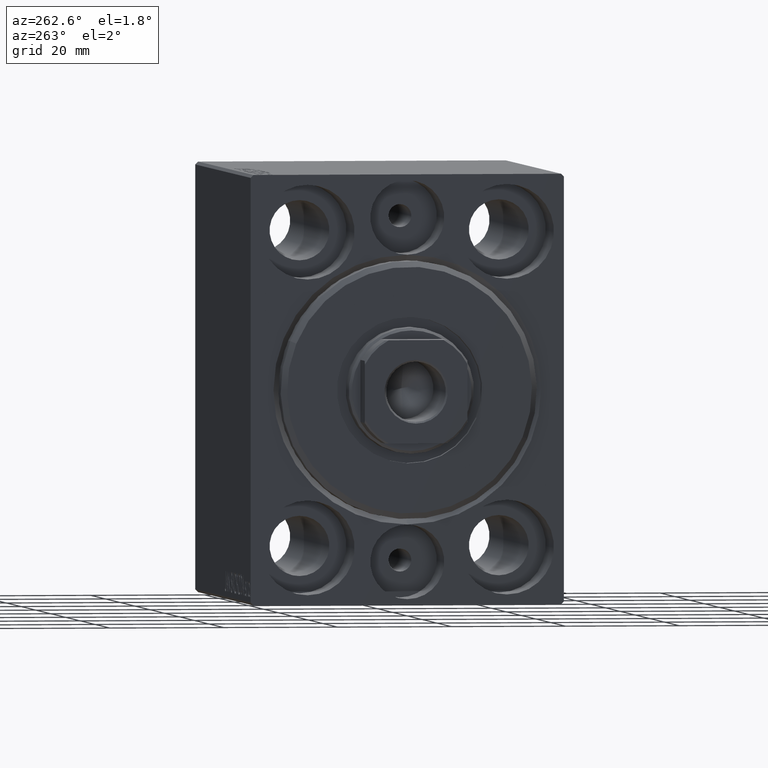
[diagram: clean part render]
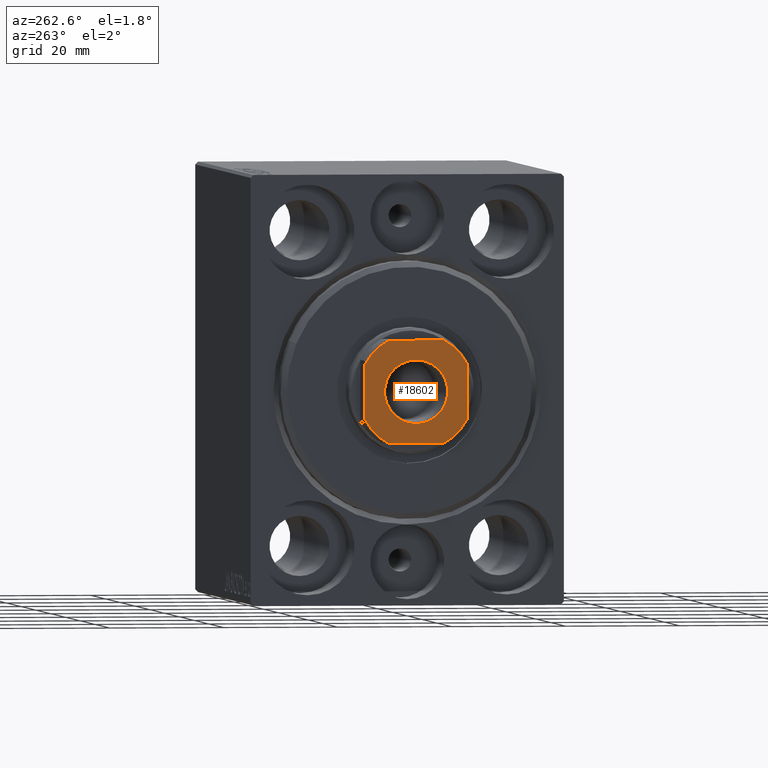
[diagram: same view with one face highlighted and labeled with its STEP entity id]
A machine part, auxiliary view. The second image highlights one B-rep face of the part: STEP entity #18602.
In plain terms, the highlighted planar face has unit normal (-1, 0, 0).
Its self-contained STEP definition (entity closure, byte-faithful):
#807 = LINE ( 'NONE', #41698, #2373 ) ;
#1028 = CIRCLE ( 'NONE', #33521, 10.19999999999999929 ) ;
#2373 = VECTOR ( 'NONE', #31942, 1000.000000000000000 ) ;
#3287 = CARTESIAN_POINT ( 'NONE',  ( 0.000000000000000000, 0.000000000000000000, 77.00000000000001421 ) ) ;
#4391 = VERTEX_POINT ( 'NONE', #40075 ) ;
#5228 = CARTESIAN_POINT ( 'NONE',  ( 8.999999999999998224, 8.999999999999998224, 77.00000000000001421 ) ) ;
#5481 = EDGE_CURVE ( 'NONE', #17757, #33230, #807, .T. ) ;
#5817 = CARTESIAN_POINT ( 'NONE',  ( 8.999999999999998224, 4.800000000000010481, 77.00000000000001421 ) ) ;
#5876 = DIRECTION ( 'NONE',  ( 1.000000000000000000, 0.000000000000000000, 0.000000000000000000 ) ) ;
#6104 = DIRECTION ( 'NONE',  ( 0.000000000000000000, -0.000000000000000000, -1.000000000000000000 ) ) ;
#6284 = CARTESIAN_POINT ( 'NONE',  ( 0.000000000000000000, 0.000000000000000000, 77.00000000000001421 ) ) ;
#6552 = ORIENTED_EDGE ( 'NONE', *, *, #33234, .T. ) ;
#6734 = VECTOR ( 'NONE', #15640, 1000.000000000000000 ) ;
#6881 = VERTEX_POINT ( 'NONE', #29156 ) ;
#7166 = CARTESIAN_POINT ( 'NONE',  ( 9.000000000000001776, -4.800000000000007816, 77.00000000000001421 ) ) ;
#7658 = DIRECTION ( 'NONE',  ( 0.000000000000000000, -0.000000000000000000, -1.000000000000000000 ) ) ;
#7698 = CARTESIAN_POINT ( 'NONE',  ( -4.799999999999995381, -9.000000000000001776, 77.00000000000001421 ) ) ;
#8181 = EDGE_CURVE ( 'NONE', #24099, #33221, #28881, .T. ) ;
#9314 = DIRECTION ( 'NONE',  ( 1.000000000000000000, 0.000000000000000000, 0.000000000000000000 ) ) ;
#9473 = VECTOR ( 'NONE', #9707, 1000.000000000000000 ) ;
#9476 = FACE_OUTER_BOUND ( 'NONE', #41335, .T. ) ;
#9707 = DIRECTION ( 'NONE',  ( -1.000000000000000000, -0.000000000000000000, -0.000000000000000000 ) ) ;
#10754 = ORIENTED_EDGE ( 'NONE', *, *, #36886, .T. ) ;
#10992 = AXIS2_PLACEMENT_3D ( 'NONE', #39694, #6104, #5876 ) ;
#11536 = ORIENTED_EDGE ( 'NONE', *, *, #8181, .T. ) ;
#12021 = DIRECTION ( 'NONE',  ( -0.000000000000000000, 0.000000000000000000, 1.000000000000000000 ) ) ;
#12302 = EDGE_CURVE ( 'NONE', #6881, #32501, #39988, .T. ) ;
#13032 = ORIENTED_EDGE ( 'NONE', *, *, #35333, .T. ) ;
#13462 = CARTESIAN_POINT ( 'NONE',  ( -8.999999999999998224, -4.799999999999999822, 77.00000000000001421 ) ) ;
#14715 = DIRECTION ( 'NONE',  ( 1.000000000000000000, 0.000000000000000000, 0.000000000000000000 ) ) ;
#15640 = DIRECTION ( 'NONE',  ( 1.927470528863119049E-16, -1.000000000000000000, 0.000000000000000000 ) ) ;
#15659 = ORIENTED_EDGE ( 'NONE', *, *, #5481, .T. ) ;
#16150 = CARTESIAN_POINT ( 'NONE',  ( -4.799999999999990941, 8.999999999999998224, 77.00000000000001421 ) ) ;
#16344 = CARTESIAN_POINT ( 'NONE',  ( -9.000000000000001776, 8.999999999999998224, 77.00000000000001421 ) ) ;
#16560 = CARTESIAN_POINT ( 'NONE',  ( 4.800000000000006928, -9.000000000000001776, 77.00000000000001421 ) ) ;
#16894 = DIRECTION ( 'NONE',  ( -0.000000000000000000, 0.000000000000000000, 1.000000000000000000 ) ) ;
#17137 = CARTESIAN_POINT ( 'NONE',  ( 5.550000000000013145, 0.000000000000000000, 77.00000000000001421 ) ) ;
#17757 = VERTEX_POINT ( 'NONE', #7698 ) ;
#18602 = ADVANCED_FACE ( 'NONE', ( #26493, #9476 ), #20308, .T. ) ;
#19450 = CIRCLE ( 'NONE', #10992, 5.550000000000013145 ) ;
#20302 = VERTEX_POINT ( 'NONE', #16150 ) ;
#20308 = PLANE ( 'NONE',  #30264 ) ;
#20511 = VECTOR ( 'NONE', #36154, 1000.000000000000000 ) ;
#22288 = CIRCLE ( 'NONE', #36429, 10.20000000000000462 ) ;
#23010 = ORIENTED_EDGE ( 'NONE', *, *, #25731, .T. ) ;
#23410 = DIRECTION ( 'NONE',  ( 1.000000000000000000, 0.000000000000000000, 0.000000000000000000 ) ) ;
#23733 = EDGE_LOOP ( 'NONE', ( #38359, #36829 ) ) ;
#23839 = DIRECTION ( 'NONE',  ( 1.000000000000000000, 0.000000000000000000, 0.000000000000000000 ) ) ;
#24099 = VERTEX_POINT ( 'NONE', #31596 ) ;
#25731 = EDGE_CURVE ( 'NONE', #27667, #4391, #29608, .T. ) ;
#26083 = AXIS2_PLACEMENT_3D ( 'NONE', #35629, #39601, #9314 ) ;
#26200 = LINE ( 'NONE', #5228, #20511 ) ;
#26493 = FACE_BOUND ( 'NONE', #23733, .T. ) ;
#27106 = DIRECTION ( 'NONE',  ( 1.000000000000000000, 0.000000000000000000, 0.000000000000000000 ) ) ;
#27356 = DIRECTION ( 'NONE',  ( -0.000000000000000000, 0.000000000000000000, 1.000000000000000000 ) ) ;
#27667 = VERTEX_POINT ( 'NONE', #5817 ) ;
#27757 = ORIENTED_EDGE ( 'NONE', *, *, #43061, .T. ) ;
#28322 = EDGE_CURVE ( 'NONE', #33511, #27667, #26200, .T. ) ;
#28663 = AXIS2_PLACEMENT_3D ( 'NONE', #37945, #7658, #27106 ) ;
#28881 = LINE ( 'NONE', #42388, #6734 ) ;
#29153 = ORIENTED_EDGE ( 'NONE', *, *, #28322, .T. ) ;
#29156 = CARTESIAN_POINT ( 'NONE',  ( -5.550000000000013145, 6.796789735267826558E-16, 77.00000000000001421 ) ) ;
#29608 = CIRCLE ( 'NONE', #26083, 10.20000000000000462 ) ;
#30264 = AXIS2_PLACEMENT_3D ( 'NONE', #37109, #39545, #23410 ) ;
#31596 = CARTESIAN_POINT ( 'NONE',  ( -9.000000000000001776, 4.799999999999986500, 77.00000000000001421 ) ) ;
#31942 = DIRECTION ( 'NONE',  ( 1.000000000000000000, 0.000000000000000000, 0.000000000000000000 ) ) ;
#32501 = VERTEX_POINT ( 'NONE', #17137 ) ;
#32808 = AXIS2_PLACEMENT_3D ( 'NONE', #6284, #16894, #43194 ) ;
#33135 = LINE ( 'NONE', #16344, #9473 ) ;
#33221 = VERTEX_POINT ( 'NONE', #13462 ) ;
#33230 = VERTEX_POINT ( 'NONE', #16560 ) ;
#33234 = EDGE_CURVE ( 'NONE', #4391, #20302, #33135, .T. ) ;
#33511 = VERTEX_POINT ( 'NONE', #7166 ) ;
#33521 = AXIS2_PLACEMENT_3D ( 'NONE', #3287, #27356, #23839 ) ;
#35333 = EDGE_CURVE ( 'NONE', #33221, #17757, #1028, .T. ) ;
#35465 = CARTESIAN_POINT ( 'NONE',  ( 0.000000000000000000, 0.000000000000000000, 77.00000000000001421 ) ) ;
#35629 = CARTESIAN_POINT ( 'NONE',  ( 0.000000000000000000, 0.000000000000000000, 77.00000000000001421 ) ) ;
#36154 = DIRECTION ( 'NONE',  ( -1.927470528863119049E-16, 1.000000000000000000, -0.000000000000000000 ) ) ;
#36429 = AXIS2_PLACEMENT_3D ( 'NONE', #35465, #12021, #14715 ) ;
#36829 = ORIENTED_EDGE ( 'NONE', *, *, #12302, .T. ) ;
#36886 = EDGE_CURVE ( 'NONE', #20302, #24099, #43441, .T. ) ;
#37109 = CARTESIAN_POINT ( 'NONE',  ( 0.000000000000000000, 0.000000000000000000, 77.00000000000001421 ) ) ;
#37945 = CARTESIAN_POINT ( 'NONE',  ( 0.000000000000000000, 0.000000000000000000, 77.00000000000001421 ) ) ;
#38359 = ORIENTED_EDGE ( 'NONE', *, *, #42118, .T. ) ;
#39545 = DIRECTION ( 'NONE',  ( -0.000000000000000000, 0.000000000000000000, 1.000000000000000000 ) ) ;
#39601 = DIRECTION ( 'NONE',  ( -0.000000000000000000, 0.000000000000000000, 1.000000000000000000 ) ) ;
#39694 = CARTESIAN_POINT ( 'NONE',  ( 0.000000000000000000, 0.000000000000000000, 77.00000000000001421 ) ) ;
#39988 = CIRCLE ( 'NONE', #28663, 5.550000000000013145 ) ;
#40075 = CARTESIAN_POINT ( 'NONE',  ( 4.800000000000012257, 8.999999999999998224, 77.00000000000001421 ) ) ;
#41335 = EDGE_LOOP ( 'NONE', ( #29153, #23010, #6552, #10754, #11536, #13032, #15659, #27757 ) ) ;
#41698 = CARTESIAN_POINT ( 'NONE',  ( -8.999999999999998224, -9.000000000000001776, 77.00000000000001421 ) ) ;
#42118 = EDGE_CURVE ( 'NONE', #32501, #6881, #19450, .T. ) ;
#42388 = CARTESIAN_POINT ( 'NONE',  ( -9.000000000000001776, 8.999999999999998224, 77.00000000000001421 ) ) ;
#43061 = EDGE_CURVE ( 'NONE', #33230, #33511, #22288, .T. ) ;
#43194 = DIRECTION ( 'NONE',  ( 1.000000000000000000, 0.000000000000000000, 0.000000000000000000 ) ) ;
#43441 = CIRCLE ( 'NONE', #32808, 10.19999999999999396 ) ;